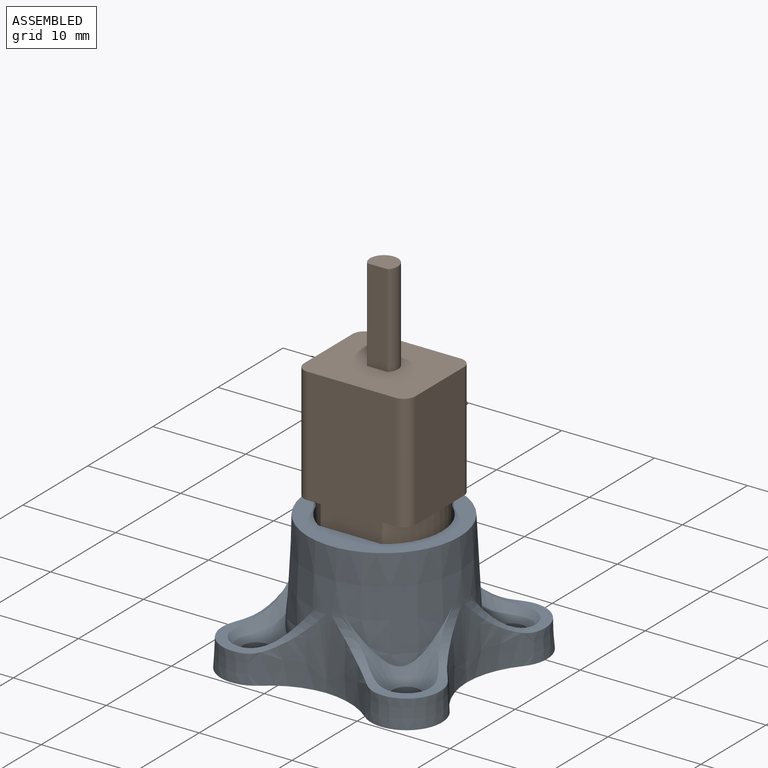
[diagram: assembled view]
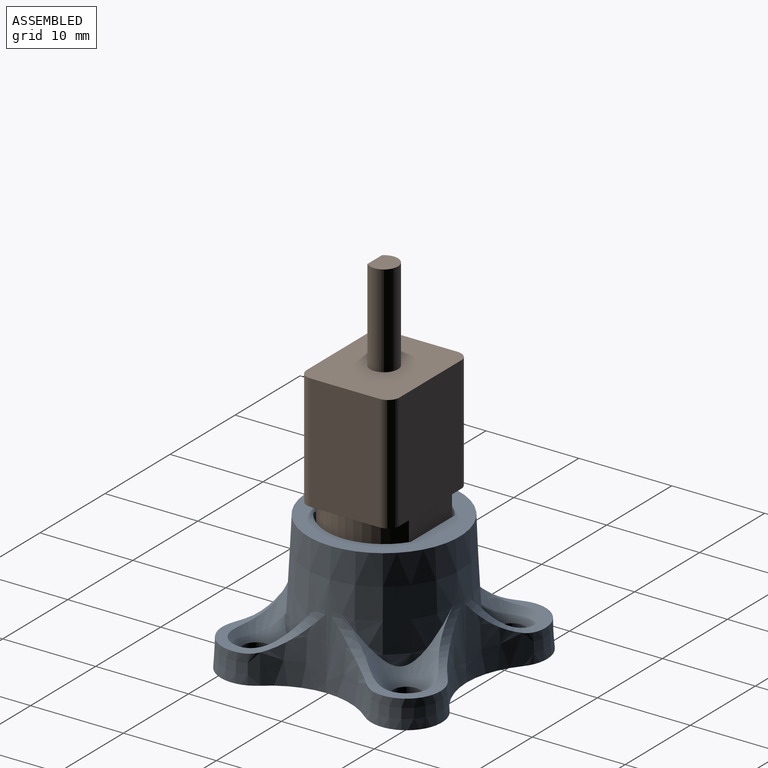
[diagram: assembled view, second angle]
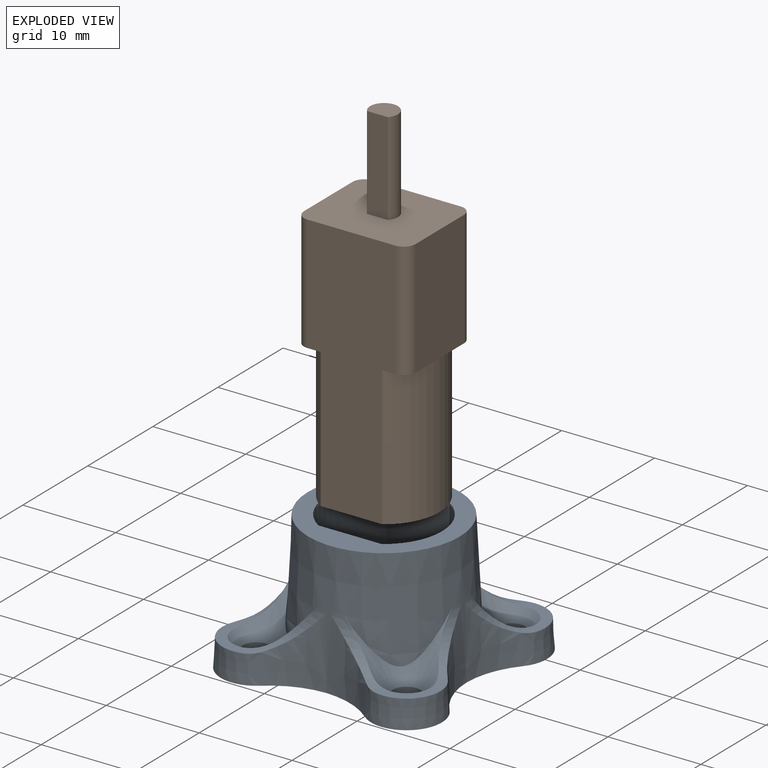
[diagram: exploded view]
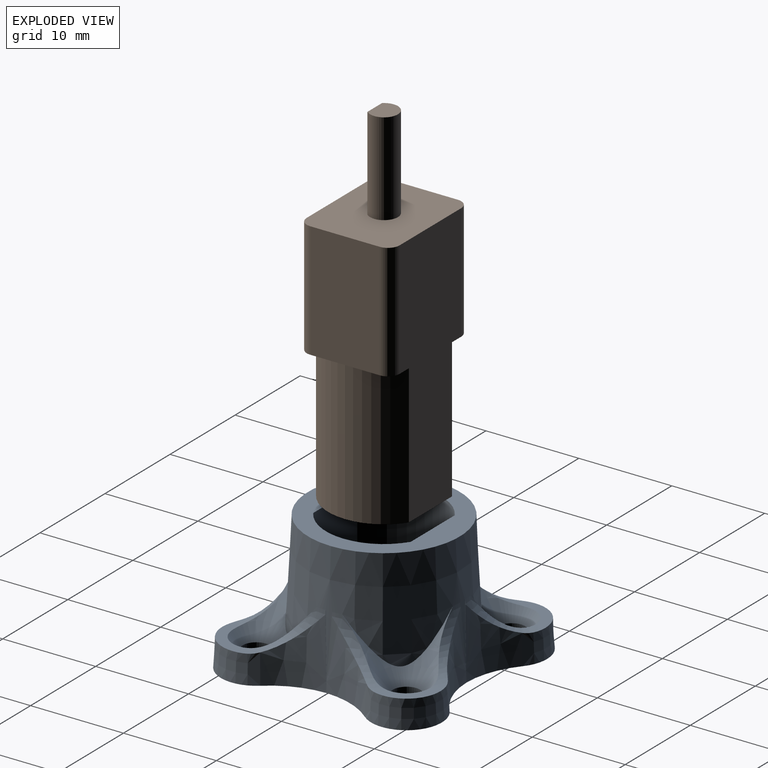
[diagram: exploded view, second angle]
ASSEMBLY  parts=2 mates=2
PART A: 49 faces, bbox 37.1x37.1x14 mm
  f0: torus R=13.55mm, axis (0,0,-1), area 8.8mm2, adj f8,f13,f16,f17,f18,f20
  f1: torus R=13.55mm, axis (0,0,-1), area 8.8mm2, adj f7,f13,f21,f24,f25,f27
  f2: torus R=13.55mm, axis (0,0,-1), area 8.8mm2, adj f6,f13,f28,f31,f32,f34
  f3: torus R=13.55mm, axis (0,0,-1), area 8.8mm2, adj f13,f35,f36,f39,f40,f42
  f4: plane 6.69x0.37mm, normal (-1,0,0.05), area 0mm2, adj f5,f13,f35,f46
  f5: cone r=8.89mm half-angle=3deg, axis (0,0,1), area 30mm2, adj f4,f15,f17,f36,f46
  f6: cone r=8.89mm half-angle=3deg, axis (0,0,1), area 30mm2, adj f2,f15,f28,f31,f38
  f7: cone r=8.89mm half-angle=3deg, axis (0,0,1), area 30mm2, adj f1,f15,f21,f24,f30
  f8: cone r=8.89mm half-angle=3deg, axis (0,0,1), area 30mm2, adj f0,f15,f16,f17,f23
  f9: cylinder r=6.25mm len=14mm, axis (0,0,-1), area 168.3mm2, adj f10,f12,f14,f15,f47,f48
  f10: plane 14x6.78mm, normal (0,-1,0), area 95mm2, adj f9,f11,f14,f15
  f11: cylinder r=6.25mm len=14mm, axis (0,0,-1), area 168.3mm2, adj f10,f12,f14,f15,f47,f48
  f12: plane 13x6.78mm, normal (0,1,0), area 88.2mm2, adj f9,f11,f14,f48
  f13: cone r=8.16mm half-angle=3deg, axis (0,0,-1), area 451.2mm2, adj f0,f1,f2,f3,f4,f14,f16,f20
  f14: plane 16.31x16.31mm, normal (0,0,1), area 95.4mm2, adj f9,f10,f11,f12,f13
  f15: plane 23.78x23.78mm, normal (0,0,-1), area 359mm2, adj f5,f6,f7,f8,f9,f10,f11,f17
  f16: plane 6.69x0.37mm, normal (-0.02,1,0.05), area 0mm2, adj f0,f8,f13,f22
  f17: cone r=3.81mm half-angle=3deg, axis (0,0,-1), area 33.6mm2, adj f0,f5,f8,f15,f18,f46
  f18: plane 4.7x4.7mm, normal (0,0,1), area 6.2mm2, adj f0,f17,f20,f46
  f19: cylinder r=1.47mm len=2.95mm, axis (0,0,1), area 16.4mm2, adj f15,f20
  f20: cone r=1.47mm half-angle=41deg, axis (0,0,1), area 35.7mm2, adj f0,f13,f18,f19,f46
  f21: plane 6.69x0.37mm, normal (-1,-0.02,0.05), area 0mm2, adj f1,f7,f13,f29
  f22: plane 6.69x0.37mm, normal (0,-1,0.05), area 0mm2, adj f13,f16,f23,f45
  f23: cone r=8.89mm half-angle=3deg, axis (0,0,1), area 30mm2, adj f8,f15,f22,f24,f45
  f24: cone r=3.81mm half-angle=3deg, axis (0,0,-1), area 33.6mm2, adj f1,f7,f15,f23,f25,f45
  f25: plane 4.7x4.7mm, normal (0,0,1), area 6.2mm2, adj f1,f24,f27,f45
  f26: cylinder r=1.47mm len=2.95mm, axis (0,0,1), area 16.4mm2, adj f15,f27
  f27: cone r=1.47mm half-angle=41deg, axis (0,0,1), area 35.7mm2, adj f1,f13,f25,f26,f45
  f28: plane 6.69x0.37mm, normal (0.02,-1,0.05), area 0mm2, adj f2,f6,f13,f37
  f29: plane 6.69x0.37mm, normal (1,0,0.05), area 0mm2, adj f13,f21,f30,f44
  f30: cone r=8.89mm half-angle=3deg, axis (0,0,1), area 30mm2, adj f7,f15,f29,f31,f44
  f31: cone r=3.81mm half-angle=3deg, axis (0,0,-1), area 33.6mm2, adj f2,f6,f15,f30,f32,f44
  f32: plane 4.7x4.7mm, normal (0,0,1), area 6.2mm2, adj f2,f31,f34,f44
  f33: cylinder r=1.47mm len=2.95mm, axis (0,0,1), area 16.4mm2, adj f15,f34
  f34: cone r=1.47mm half-angle=41deg, axis (0,0,1), area 35.8mm2, adj f2,f13,f32,f33,f44
  f35: plane 6.69x0.37mm, normal (1,0.02,0.05), area 0mm2, adj f3,f4,f13,f36
  f36: cone r=8.89mm half-angle=3deg, axis (0,0,1), area 30mm2, adj f3,f5,f15,f35,f39
  f37: plane 6.69x0.37mm, normal (0,1,0.05), area 0mm2, adj f13,f28,f38,f43
  f38: cone r=8.89mm half-angle=3deg, axis (0,0,1), area 30mm2, adj f6,f15,f37,f39,f43
  f39: cone r=3.81mm half-angle=3deg, axis (0,0,-1), area 33.6mm2, adj f3,f15,f36,f38,f40,f43
  f40: plane 4.7x4.7mm, normal (0,0,1), area 6.2mm2, adj f3,f39,f42,f43
  f41: cylinder r=1.47mm len=2.95mm, axis (0,0,1), area 16.4mm2, adj f15,f42
  f42: cone r=1.47mm half-angle=41deg, axis (0,0,1), area 35.8mm2, adj f3,f13,f40,f41,f43
  f43: torus R=13.55mm, axis (0,0,-1), area 8.8mm2, adj f13,f37,f38,f39,f40,f42
  f44: torus R=13.55mm, axis (0,0,-1), area 8.8mm2, adj f13,f29,f30,f31,f32,f34
  f45: torus R=13.55mm, axis (0,0,-1), area 8.8mm2, adj f13,f22,f23,f24,f25,f27
  f46: torus R=13.55mm, axis (0,0,-1), area 8.8mm2, adj f4,f5,f13,f17,f18,f20
  f47: plane 12.5x1mm, normal (0,1,0), area 12.5mm2, adj f9,f11,f15,f48
  f48: plane 12.5x5.25mm, normal (0,0,1), area 56.8mm2, adj f9,f11,f12,f47
PART B: 19 faces, bbox 12x37.5x10 mm
  f0: plane 27.5x9.46mm, normal (0,0,1), area 217.7mm2, adj f1,f3,f4,f5,f8,f9,f10,f15
  f1: cylinder r=6mm len=15mm, axis (0,1,0), area 177.3mm2, adj f0,f2,f4,f5,f6
  f2: plane 27.5x9.46mm, normal (0,0,-1), area 217.7mm2, adj f1,f3,f4,f6,f7,f12,f13,f15
  f3: cylinder r=6mm len=15mm, axis (0,1,0), area 177.3mm2, adj f0,f2,f4,f7,f8
  f4: plane 12x10mm, normal (0,1,0), area 104.1mm2, adj f0,f1,f2,f3
  f5: plane 5x2.68mm, normal (0,1,0), area 3.6mm2, adj f0,f1,f10,f11
  f6: plane 5x2.68mm, normal (0,1,0), area 3.6mm2, adj f1,f2,f11,f12
  f7: plane 5x2.68mm, normal (0,1,0), area 3.6mm2, adj f2,f3,f13,f14
  f8: plane 5x2.68mm, normal (0,1,0), area 3.6mm2, adj f0,f3,f9,f14
  f9: cylinder r=1.27mm len=12.5mm, axis (0,1,0), area 24.9mm2, adj f0,f8,f14,f15
  f10: cylinder r=1.27mm len=12.5mm, axis (0,1,0), area 24.9mm2, adj f0,f5,f11,f15
  f11: plane 12.5x7.46mm, normal (-1,0,0), area 93.2mm2, adj f5,f6,f10,f12,f15
  f12: cylinder r=1.27mm len=12.5mm, axis (0,1,0), area 24.9mm2, adj f2,f6,f11,f15
  f13: cylinder r=1.27mm len=12.5mm, axis (0,1,0), area 24.9mm2, adj f2,f7,f14,f15
  f14: plane 12.5x7.46mm, normal (1,0,0), area 93.2mm2, adj f7,f8,f9,f13,f15
  f15: plane 12x10mm, normal (0,-1,0), area 112.3mm2, adj f0,f2,f9,f10,f11,f12,f13,f14
  f16: plane 10x2.24mm, normal (0,0,-1), area 22.4mm2, adj f15,f17,f18
  f17: cylinder r=1.5mm len=10mm, axis (0,1,0), area 69mm2, adj f15,f16,f18
  f18: plane 3x2.5mm, normal (0,-1,0), area 6.3mm2, adj f16,f17
PLACE A t=(-4.66,0.78,-1.79)mm fixed
PLACE B rot(axis=(-1,0,0),90deg) t=(-4.66,0.78,-0.79)mm
MATE slider B.f3 <-> A.f9  axis (0,0,-1) through (-4.66,0.78,6.71)mm
MATE planar A.f11 <-> B.f1  axis (0,0,1) through (-4.66,0.78,-0.79)mm
